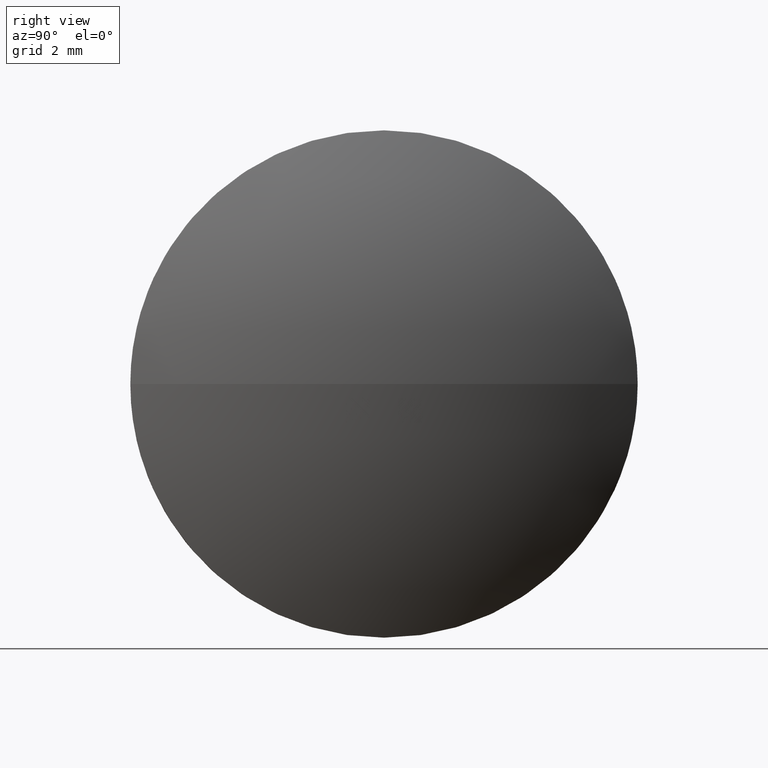
[diagram: clean part render]
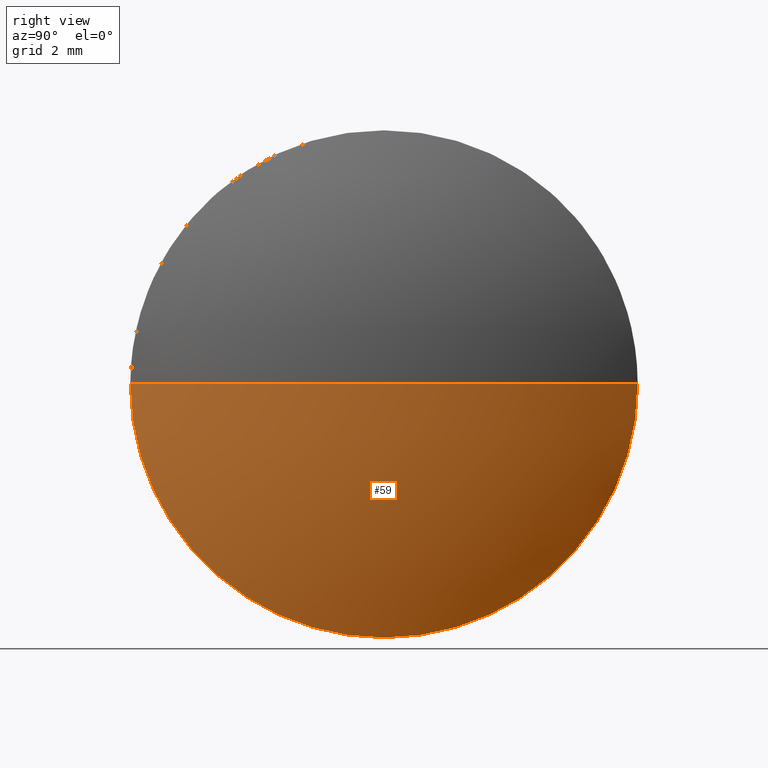
[diagram: same view with one face highlighted and labeled with its STEP entity id]
A machine part, right view. The second image highlights one B-rep face of the part: STEP entity #59.
In plain terms, the highlighted spherical surface has radius 10.3349 mm.
Its self-contained STEP definition (entity closure, byte-faithful):
#1 = AXIS2_PLACEMENT_3D ( 'NONE', #42, #45, #147 ) ;
#10 = EDGE_CURVE ( 'NONE', #20, #157, #158, .T. ) ;
#20 = VERTEX_POINT ( 'NONE', #104 ) ;
#27 = CARTESIAN_POINT ( 'NONE',  ( 484.6563062528024400, 43.15636075815857700, 0.0000000000000000000 ) ) ;
#29 = EDGE_CURVE ( 'NONE', #133, #157, #88, .T. ) ;
#30 = ORIENTED_EDGE ( 'NONE', *, *, #10, .F. ) ;
#32 = ORIENTED_EDGE ( 'NONE', *, *, #143, .F. ) ;
#37 = CARTESIAN_POINT ( 'NONE',  ( 494.9912287334225900, 43.15636075815857700, 0.0000000000000000000 ) ) ;
#42 = CARTESIAN_POINT ( 'NONE',  ( 484.6563062528024400, 43.15636075815857700, 0.0000000000000000000 ) ) ;
#45 = DIRECTION ( 'NONE',  ( 0.0000000000000000000, 0.0000000000000000000, 1.000000000000000000 ) ) ;
#51 = DIRECTION ( 'NONE',  ( -1.000000000000000000, -0.0000000000000000000, -0.0000000000000000000 ) ) ;
#59 = ADVANCED_FACE ( 'NONE', ( #126 ), #145, .T. ) ;
#61 = CARTESIAN_POINT ( 'NONE',  ( 484.6563062528024400, 43.15636075815857700, 0.0000000000000000000 ) ) ;
#62 = DIRECTION ( 'NONE',  ( -1.000000000000000000, -0.0000000000000000000, -0.0000000000000000000 ) ) ;
#64 = CARTESIAN_POINT ( 'NONE',  ( 493.7012287334225700, 43.15636075815854200, 0.0000000000000000000 ) ) ;
#67 = AXIS2_PLACEMENT_3D ( 'NONE', #64, #51, #96 ) ;
#73 = AXIS2_PLACEMENT_3D ( 'NONE', #27, #136, #139 ) ;
#75 = EDGE_LOOP ( 'NONE', ( #32, #163, #30, #119 ) ) ;
#76 = EDGE_CURVE ( 'NONE', #108, #20, #79, .T. ) ;
#79 = CIRCLE ( 'NONE', #67, 5.000000000000004400 ) ;
#85 = AXIS2_PLACEMENT_3D ( 'NONE', #184, #62, #132 ) ;
#88 = CIRCLE ( 'NONE', #100, 10.33492248062017900 ) ;
#96 = DIRECTION ( 'NONE',  ( 0.0000000000000000000, 0.0000000000000000000, 1.000000000000000000 ) ) ;
#100 = AXIS2_PLACEMENT_3D ( 'NONE', #61, #159, #115 ) ;
#104 = CARTESIAN_POINT ( 'NONE',  ( 493.7012287334225700, 43.15636075815854200, -5.000000000000004400 ) ) ;
#105 = CARTESIAN_POINT ( 'NONE',  ( 493.7012287334225700, 48.15636075815855600, 6.123233995736746600E-016 ) ) ;
#108 = VERTEX_POINT ( 'NONE', #105 ) ;
#115 = DIRECTION ( 'NONE',  ( -1.000000000000000000, 0.0000000000000000000, 0.0000000000000000000 ) ) ;
#119 = ORIENTED_EDGE ( 'NONE', *, *, #76, .F. ) ;
#126 = FACE_OUTER_BOUND ( 'NONE', #75, .T. ) ;
#132 = DIRECTION ( 'NONE',  ( 0.0000000000000000000, 0.0000000000000000000, 1.000000000000000000 ) ) ;
#133 = VERTEX_POINT ( 'NONE', #37 ) ;
#136 = DIRECTION ( 'NONE',  ( 0.0000000000000000000, -1.224646799147353200E-016, 1.000000000000000000 ) ) ;
#139 = DIRECTION ( 'NONE',  ( 0.0000000000000000000, -1.000000000000000000, -1.224646799147353200E-016 ) ) ;
#140 = CIRCLE ( 'NONE', #73, 10.33492248062016500 ) ;
#143 = EDGE_CURVE ( 'NONE', #133, #108, #140, .T. ) ;
#145 = SPHERICAL_SURFACE ( 'NONE', #1, 10.33492248062016500 ) ;
#147 = DIRECTION ( 'NONE',  ( 0.0000000000000000000, -1.000000000000000000, 0.0000000000000000000 ) ) ;
#157 = VERTEX_POINT ( 'NONE', #170 ) ;
#158 = CIRCLE ( 'NONE', #85, 5.000000000000004400 ) ;
#159 = DIRECTION ( 'NONE',  ( 0.0000000000000000000, 0.0000000000000000000, -1.000000000000000000 ) ) ;
#163 = ORIENTED_EDGE ( 'NONE', *, *, #29, .T. ) ;
#170 = CARTESIAN_POINT ( 'NONE',  ( 493.7012287334225700, 38.15636075815854900, 0.0000000000000000000 ) ) ;
#184 = CARTESIAN_POINT ( 'NONE',  ( 493.7012287334225700, 43.15636075815854200, 0.0000000000000000000 ) ) ;